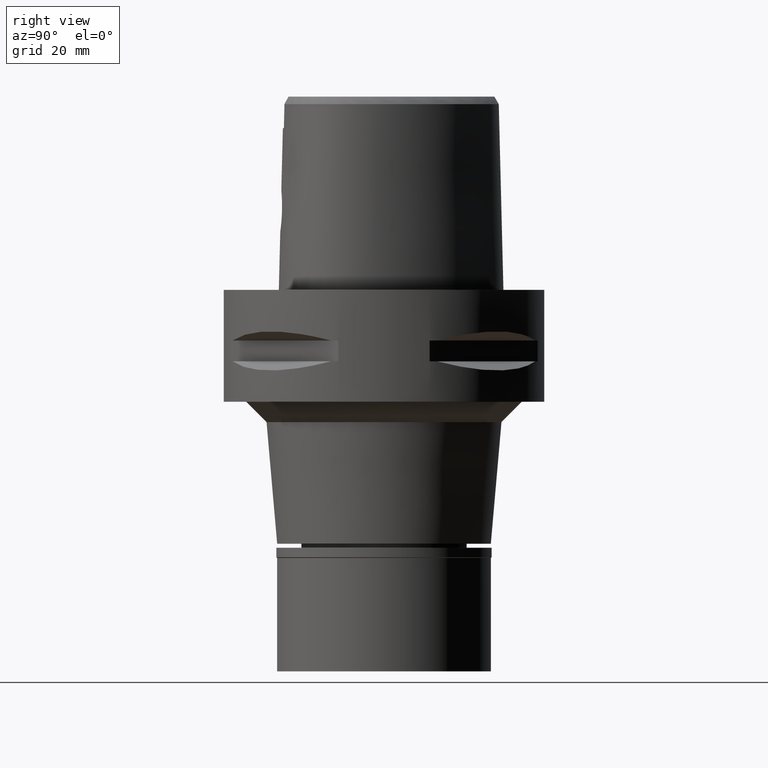
[diagram: clean part render]
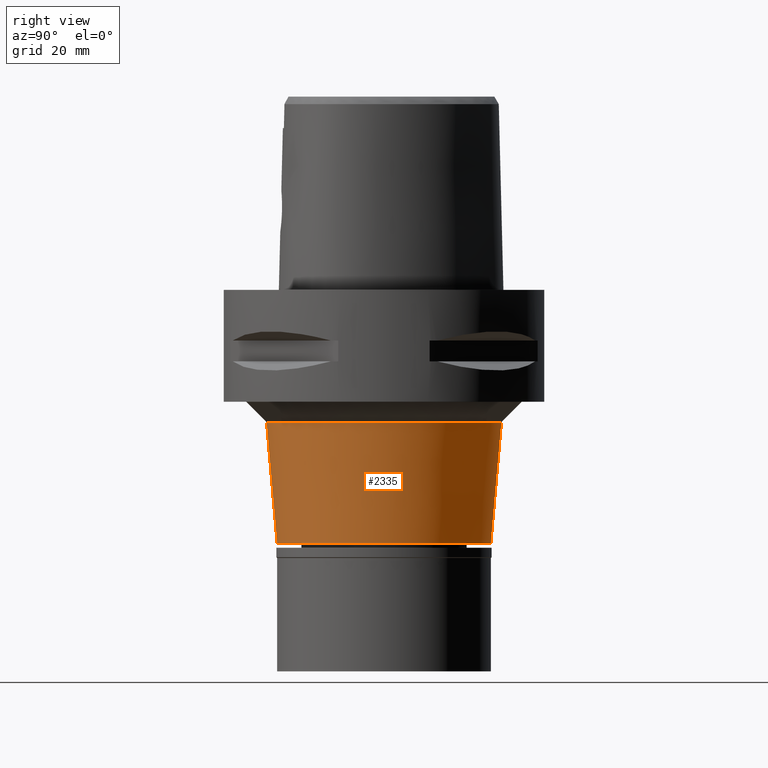
[diagram: same view with one face highlighted and labeled with its STEP entity id]
A machine part, right view. The second image highlights one B-rep face of the part: STEP entity #2335.
In plain terms, the highlighted conical surface has half-angle 5 deg.
Its self-contained STEP definition (entity closure, byte-faithful):
#43 = CIRCLE ( 'NONE', #4823, 21.00000000000000000 ) ;
#155 = CARTESIAN_POINT ( 'NONE',  ( 0.0000000000000000000, 0.0000000000000000000, -49.89999999999999858 ) ) ;
#173 = AXIS2_PLACEMENT_3D ( 'NONE', #1333, #3217, #2944 ) ;
#384 = LINE ( 'NONE', #704, #1056 ) ;
#404 = ORIENTED_EDGE ( 'NONE', *, *, #4093, .T. ) ;
#457 = DIRECTION ( 'NONE',  ( 0.0000000000000000000, 0.0000000000000000000, 1.000000000000000000 ) ) ;
#502 = FACE_OUTER_BOUND ( 'NONE', #2441, .T. ) ;
#564 = ORIENTED_EDGE ( 'NONE', *, *, #1276, .F. ) ;
#704 = CARTESIAN_POINT ( 'NONE',  ( 0.0000000000000000000, -23.09097905827000119, -26.00000000000000000 ) ) ;
#931 = VERTEX_POINT ( 'NONE', #997 ) ;
#997 = CARTESIAN_POINT ( 'NONE',  ( 0.0000000000000000000, 23.09097905827000119, -26.00000000000000000 ) ) ;
#1056 = VECTOR ( 'NONE', #4072, 1000.000000000000000 ) ;
#1115 = ORIENTED_EDGE ( 'NONE', *, *, #2988, .F. ) ;
#1276 = EDGE_CURVE ( 'NONE', #3301, #931, #2313, .T. ) ;
#1333 = CARTESIAN_POINT ( 'NONE',  ( 0.0000000000000000000, 0.0000000000000000000, -26.00000000000000000 ) ) ;
#1938 = CARTESIAN_POINT ( 'NONE',  ( 0.0000000000000000000, -23.09097905827000119, -26.00000000000000000 ) ) ;
#1965 = DIRECTION ( 'NONE',  ( 0.0000000000000000000, 1.000000000000000000, 0.0000000000000000000 ) ) ;
#2142 = AXIS2_PLACEMENT_3D ( 'NONE', #3832, #457, #1965 ) ;
#2222 = LINE ( 'NONE', #2908, #2466 ) ;
#2276 = ORIENTED_EDGE ( 'NONE', *, *, #4332, .T. ) ;
#2313 = CIRCLE ( 'NONE', #173, 23.09097905826000030 ) ;
#2335 = ADVANCED_FACE ( 'NONE', ( #502 ), #4236, .T. ) ;
#2441 = EDGE_LOOP ( 'NONE', ( #564, #404, #2276, #1115 ) ) ;
#2466 = VECTOR ( 'NONE', #3703, 1000.000000000000000 ) ;
#2470 = DIRECTION ( 'NONE',  ( 0.0000000000000000000, -1.000000000000000000, 0.0000000000000000000 ) ) ;
#2908 = CARTESIAN_POINT ( 'NONE',  ( 0.0000000000000000000, 23.09097905827000119, -26.00000000000000000 ) ) ;
#2944 = DIRECTION ( 'NONE',  ( 0.0000000000000000000, -1.000000000000000000, 0.0000000000000000000 ) ) ;
#2988 = EDGE_CURVE ( 'NONE', #931, #3484, #2222, .T. ) ;
#3174 = DIRECTION ( 'NONE',  ( 0.0000000000000000000, 0.0000000000000000000, 1.000000000000000000 ) ) ;
#3217 = DIRECTION ( 'NONE',  ( 0.0000000000000000000, 0.0000000000000000000, 1.000000000000000000 ) ) ;
#3301 = VERTEX_POINT ( 'NONE', #1938 ) ;
#3484 = VERTEX_POINT ( 'NONE', #3623 ) ;
#3623 = CARTESIAN_POINT ( 'NONE',  ( 0.0000000000000000000, 21.00000000000000000, -49.89999999999999858 ) ) ;
#3703 = DIRECTION ( 'NONE',  ( 0.0000000000000000000, -0.08715574274770356011, -0.9961946980917415484 ) ) ;
#3712 = CARTESIAN_POINT ( 'NONE',  ( 0.0000000000000000000, -21.00000000000000000, -49.89999999999999858 ) ) ;
#3832 = CARTESIAN_POINT ( 'NONE',  ( 0.0000000000000000000, 0.0000000000000000000, -37.94999999999999574 ) ) ;
#4072 = DIRECTION ( 'NONE',  ( 0.0000000000000000000, 0.08715574274770356011, -0.9961946980917415484 ) ) ;
#4093 = EDGE_CURVE ( 'NONE', #3301, #4205, #384, .T. ) ;
#4205 = VERTEX_POINT ( 'NONE', #3712 ) ;
#4236 = CONICAL_SURFACE ( 'NONE', #2142, 22.04548952913000193, 0.08726646259969973729 ) ;
#4332 = EDGE_CURVE ( 'NONE', #4205, #3484, #43, .T. ) ;
#4823 = AXIS2_PLACEMENT_3D ( 'NONE', #155, #3174, #2470 ) ;